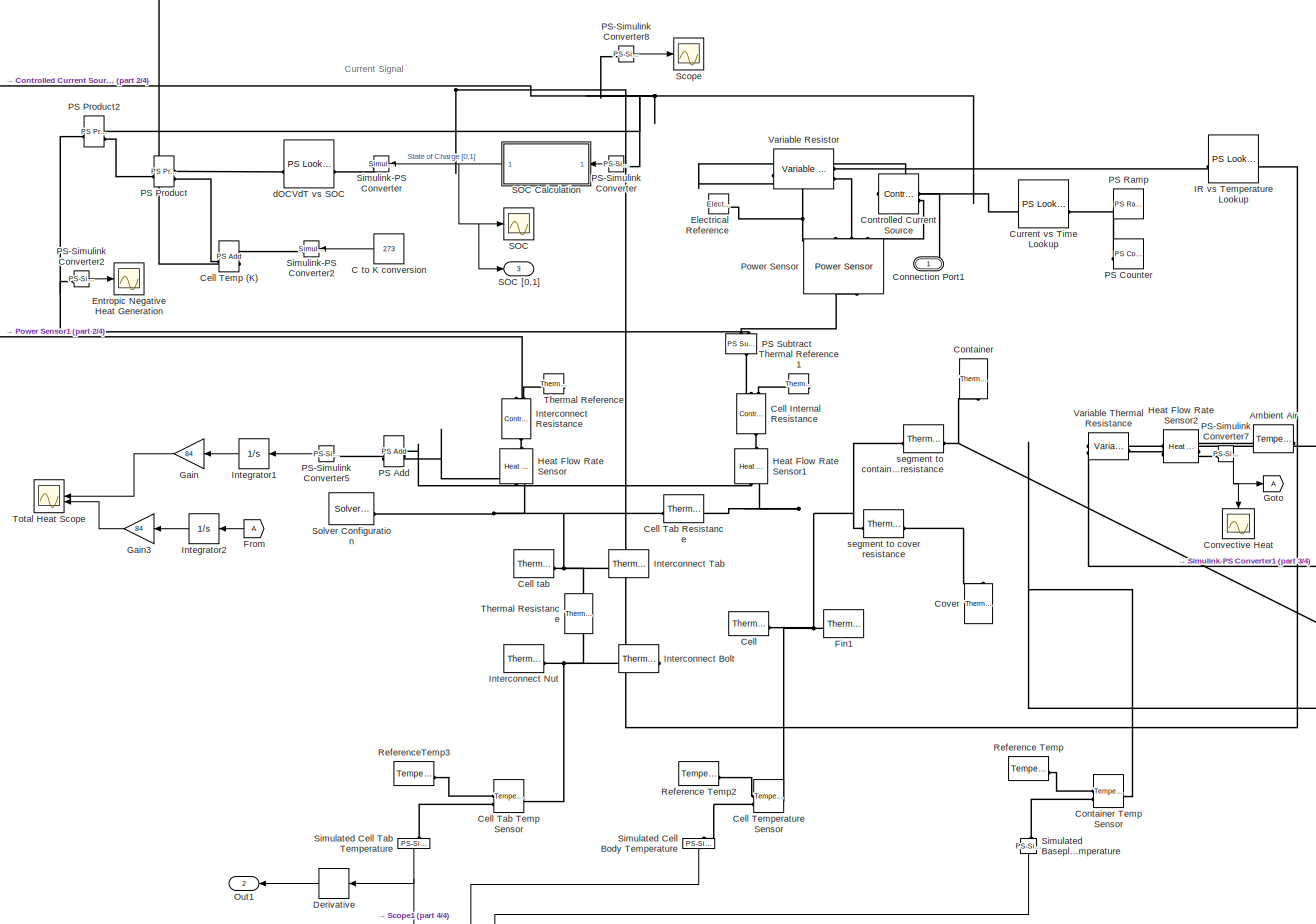
[diagram: root canvas - part 1/4, central region]
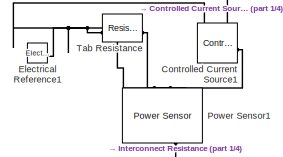
[diagram: root canvas - part 2/4, middle left region]
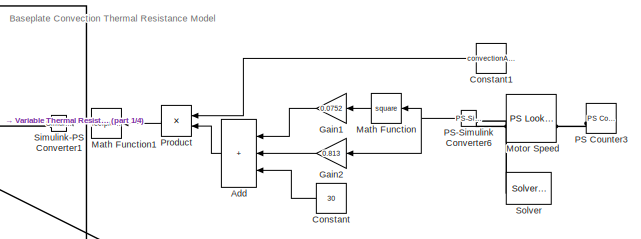
[diagram: root canvas - part 3/4, middle right region]
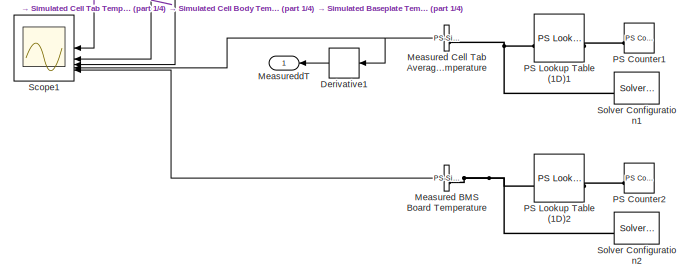
[diagram: root canvas - part 4/4, bottom center region]
MODEL slx_91faae69ffff
KIND model
CONFIG AbsTol = 1e-7
CONFIG EnableMultiTasking = off
CONFIG FixedStep = auto
CONFIG InitFcn = HT06_Simulink_Setup
CONFIG MaxStep = auto
CONFIG MinStep = auto
CONFIG RelTol = 1e-7
CONFIG SampleTimeConstraint = Unconstrained
CONFIG SolverName = VariableStepAuto
CONFIG StartTime = 0.0
CONFIG StopTime = 2500
BLOCK [Reference]  Fin1  REF=fl_lib/Thermal/Thermal Elements/Thermal Mass
  NameLocation = top
  SourceBlock = fl_lib/Thermal/Thermal Elements/Thermal Mass
  SourceType = Thermal Mass
BLOCK [Sum] Add
  IconShape = rectangular
  Inputs = +++
BLOCK [Reference] Ambient Air  REF=fl_lib/Thermal/Thermal Sources/Temperature Source
  NameLocation = top
  SourceBlock = fl_lib/Thermal/Thermal Sources/Temperature Source
  SourceType = Temperature Source
BLOCK [Constant] C to K conversion
  Value = 273
BLOCK [Reference] Cell   REF=fl_lib/Thermal/Thermal Elements/Thermal Mass
  SourceBlock = fl_lib/Thermal/Thermal Elements/Thermal Mass
  SourceType = Thermal Mass
BLOCK [Reference] Cell Internal Resistance  REF=fl_lib/Thermal/Thermal Sources/Controlled Heat Flow
Rate Source
  NameLocation = right
  SourceBlock = fl_lib/Thermal/Thermal Sources/Controlled Heat Flow\nRate Source
  SourceType = Controlled Heat Flow\nRate Source
BLOCK [Reference] Cell Tab Resistance  REF=fl_lib/Thermal/Thermal Elements/Thermal Resistance
  SourceBlock = fl_lib/Thermal/Thermal Elements/Thermal Resistance
  SourceType = Thermal Resistance
BLOCK [Reference] Cell Tab Temp Sensor  REF=fl_lib/Thermal/Thermal Sensors/Temperature Sensor
  SourceBlock = fl_lib/Thermal/Thermal Sensors/Temperature Sensor
  SourceType = Temperature Sensor
BLOCK [Reference] Cell Temp (K)  REF=fl_lib/Physical Signals/Functions/PS Add
  SourceBlock = fl_lib/Physical Signals/Functions/PS Add
  SourceType = PS Add
BLOCK [Reference] Cell Temperature Sensor  REF=fl_lib/Thermal/Thermal Sensors/Temperature Sensor
  SourceBlock = fl_lib/Thermal/Thermal Sensors/Temperature Sensor
  SourceType = Temperature Sensor
BLOCK [Reference] Cell tab  REF=fl_lib/Thermal/Thermal Elements/Thermal Mass
  Commented = on
  SourceBlock = fl_lib/Thermal/Thermal Elements/Thermal Mass
  SourceType = Thermal Mass
BLOCK [PMIOPort] Connection Port1
  Side = Left
BLOCK [Constant] Constant
  Value = 30
BLOCK [Constant] Constant1
  Value = convectionArea
BLOCK [Reference] Container  REF=fl_lib/Thermal/Thermal Elements/Thermal Mass
  NameLocation = left
  SourceBlock = fl_lib/Thermal/Thermal Elements/Thermal Mass
  SourceType = Thermal Mass
BLOCK [Reference] Container Temp Sensor  REF=fl_lib/Thermal/Thermal Sensors/Temperature Sensor
  SourceBlock = fl_lib/Thermal/Thermal Sensors/Temperature Sensor
  SourceType = Temperature Sensor
BLOCK [Reference] Controlled Current Source  REF=fl_lib/Electrical/Electrical Sources/Controlled Current
Source
  NameLocation = top
  SourceBlock = fl_lib/Electrical/Electrical Sources/Controlled Current\nSource
  SourceType = Controlled Current\nSource
BLOCK [Reference] Controlled Current Source1  REF=fl_lib/Electrical/Electrical Sources/Controlled Current
Source
  NameLocation = top
  SourceBlock = fl_lib/Electrical/Electrical Sources/Controlled Current\nSource
  SourceType = Controlled Current\nSource
BLOCK [Scope] Convective Heat
  Floating = off
  NameLocation = left
  NumInputPorts = 1
  ScopeSpecificationString = Simulink.scopes.TimeScopeBlockCfg('CurrentConfiguration', extmgr.ConfigurationSet(extmgr.Configuration('Core','General UI',true),extmgr.Configuration('Core','Source UI',true),extmgr.Configuration('Sources','WiredSimulink',true,'DataLoggingVariableName','ScopeData1'),extmgr.Configuration('Visuals','Time Domain',true,'SerializedDisplays',{struct('MinYLimReal','-0.42395','MaxYLimReal','3.81556','YLab...<+1436ch>
BLOCK [Reference] Cover  REF=fl_lib/Thermal/Thermal Elements/Thermal Mass
  NameLocation = right
  SourceBlock = fl_lib/Thermal/Thermal Elements/Thermal Mass
  SourceType = Thermal Mass
BLOCK [Reference] Current vs Time Lookup  REF=fl_lib/Physical Signals/Lookup Tables/PS Lookup Table (1D)
  SourceBlock = fl_lib/Physical Signals/Lookup Tables/PS Lookup Table (1D)
  SourceType = PS Lookup Table (1D)
BLOCK [Derivative] Derivative
BLOCK [Derivative] Derivative1
BLOCK [Reference] Electrical Reference  REF=fl_lib/Electrical/Electrical Elements/Electrical Reference
  SourceBlock = fl_lib/Electrical/Electrical Elements/Electrical Reference
  SourceType = Electrical Reference
BLOCK [Reference] Electrical Reference1  REF=fl_lib/Electrical/Electrical Elements/Electrical Reference
  SourceBlock = fl_lib/Electrical/Electrical Elements/Electrical Reference
  SourceType = Electrical Reference
BLOCK [Scope] Entropic Negative Heat Generation
  Floating = off
  NumInputPorts = 1
  ScopeSpecificationString = Simulink.scopes.TimeScopeBlockCfg('CurrentConfiguration', extmgr.ConfigurationSet(extmgr.Configuration('Core','General UI',true),extmgr.Configuration('Core','Source UI',true),extmgr.Configuration('Sources','WiredSimulink',true,'DataLoggingVariableName','ScopeData1'),extmgr.Configuration('Visuals','Time Domain',true,'SerializedDisplays',{struct('MinYLimReal','-75.9729','MaxYLimReal','12.86048','YLa...<+1425ch>
BLOCK [From] From
BLOCK [Gain] Gain
  Gain = 84
  NameLocation = top
BLOCK [Gain] Gain1
  Gain = 0.0752
BLOCK [Gain] Gain2
  Gain = 0.813
BLOCK [Gain] Gain3
  Gain = 84
  NameLocation = top
BLOCK [Goto] Goto
BLOCK [Reference] Heat Flow Rate Sensor  REF=fl_lib/Thermal/Thermal Sensors/Heat Flow Rate
Sensor
  NameLocation = left
  SourceBlock = fl_lib/Thermal/Thermal Sensors/Heat Flow Rate\nSensor
  SourceType = Heat Flow Rate\nSensor
BLOCK [Reference] Heat Flow Rate Sensor1  REF=fl_lib/Thermal/Thermal Sensors/Heat Flow Rate
Sensor
  NameLocation = left
  SourceBlock = fl_lib/Thermal/Thermal Sensors/Heat Flow Rate\nSensor
  SourceType = Heat Flow Rate\nSensor
BLOCK [Reference] Heat Flow Rate Sensor2  REF=fl_lib/Thermal/Thermal Sensors/Heat Flow Rate
Sensor
  NameLocation = top
  SourceBlock = fl_lib/Thermal/Thermal Sensors/Heat Flow Rate\nSensor
  SourceType = Heat Flow Rate\nSensor
BLOCK [Reference] IR vs Temperature Lookup  REF=fl_lib/Physical Signals/Lookup Tables/PS Lookup Table (1D)
  SourceBlock = fl_lib/Physical Signals/Lookup Tables/PS Lookup Table (1D)
  SourceType = PS Lookup Table (1D)
BLOCK [Integrator] Integrator1
  NameLocation = top
BLOCK [Integrator] Integrator2
  NameLocation = top
BLOCK [Reference] Interconnect Bolt  REF=fl_lib/Thermal/Thermal Elements/Thermal Mass
  NameLocation = top
  SourceBlock = fl_lib/Thermal/Thermal Elements/Thermal Mass
  SourceType = Thermal Mass
BLOCK [Reference] Interconnect Nut  REF=fl_lib/Thermal/Thermal Elements/Thermal Mass
  SourceBlock = fl_lib/Thermal/Thermal Elements/Thermal Mass
  SourceType = Thermal Mass
BLOCK [Reference] Interconnect Resistance  REF=fl_lib/Thermal/Thermal Sources/Controlled Heat Flow
Rate Source
  NameLocation = right
  SourceBlock = fl_lib/Thermal/Thermal Sources/Controlled Heat Flow\nRate Source
  SourceType = Controlled Heat Flow\nRate Source
BLOCK [Reference] Interconnect Tab  REF=fl_lib/Thermal/Thermal Elements/Thermal Mass
  NameLocation = top
  SourceBlock = fl_lib/Thermal/Thermal Elements/Thermal Mass
  SourceType = Thermal Mass
BLOCK [Math] Math Function
  Operator = square
BLOCK [Math] Math Function1
  Operator = reciprocal
BLOCK [Reference] Measured BMS Board Temperature  REF=nesl_utility/PS-Simulink
Converter
  SourceBlock = nesl_utility/PS-Simulink\nConverter
  SourceType = PS-Simulink\nConverter
BLOCK [Reference] Measured Cell Tab Average Temperature  REF=nesl_utility/PS-Simulink
Converter
  SourceBlock = nesl_utility/PS-Simulink\nConverter
  SourceType = PS-Simulink\nConverter
BLOCK [Outport] MeasureddT
BLOCK [Reference] Motor Speed  REF=fl_lib/Physical Signals/Lookup Tables/PS Lookup Table (1D)
  SourceBlock = fl_lib/Physical Signals/Lookup Tables/PS Lookup Table (1D)
  SourceType = PS Lookup Table (1D)
BLOCK [Outport] Out1
  Port = 2
  SignalName = SimdT
BLOCK [Reference] PS Add  REF=fl_lib/Physical Signals/Functions/PS Add
  NameLocation = top
  SourceBlock = fl_lib/Physical Signals/Functions/PS Add
  SourceType = PS Add
BLOCK [Reference] PS Counter  REF=fl_lib/Physical Signals/Sources/PS Counter
  SourceBlock = fl_lib/Physical Signals/Sources/PS Counter
  SourceType = PS Counter
BLOCK [Reference] PS Counter1  REF=fl_lib/Physical Signals/Sources/PS Counter
  SourceBlock = fl_lib/Physical Signals/Sources/PS Counter
  SourceType = PS Counter
BLOCK [Reference] PS Counter2  REF=fl_lib/Physical Signals/Sources/PS Counter
  SourceBlock = fl_lib/Physical Signals/Sources/PS Counter
  SourceType = PS Counter
BLOCK [Reference] PS Counter3  REF=fl_lib/Physical Signals/Sources/PS Counter
  SourceBlock = fl_lib/Physical Signals/Sources/PS Counter
  SourceType = PS Counter
BLOCK [Reference] PS Lookup Table (1D)1  REF=fl_lib/Physical Signals/Lookup Tables/PS Lookup Table (1D)
  SourceBlock = fl_lib/Physical Signals/Lookup Tables/PS Lookup Table (1D)
  SourceType = PS Lookup Table (1D)
BLOCK [Reference] PS Lookup Table (1D)2  REF=fl_lib/Physical Signals/Lookup Tables/PS Lookup Table (1D)
  SourceBlock = fl_lib/Physical Signals/Lookup Tables/PS Lookup Table (1D)
  SourceType = PS Lookup Table (1D)
BLOCK [Reference] PS Product  REF=fl_lib/Physical Signals/Functions/PS Product
  SourceBlock = fl_lib/Physical Signals/Functions/PS Product
  SourceType = PS Product
BLOCK [Reference] PS Product2  REF=fl_lib/Physical Signals/Functions/PS Product
  SourceBlock = fl_lib/Physical Signals/Functions/PS Product
  SourceType = PS Product
BLOCK [Reference] PS Ramp  REF=fl_lib/Physical Signals/Sources/PS Ramp
  Commented = on
  SourceBlock = fl_lib/Physical Signals/Sources/PS Ramp
  SourceType = PS Ramp
BLOCK [Reference] PS Subtract  REF=fl_lib/Physical Signals/Functions/PS Subtract
  NameLocation = left
  SourceBlock = fl_lib/Physical Signals/Functions/PS Subtract
  SourceType = PS Subtract
BLOCK [Reference] PS-Simulink Converter  REF=nesl_utility/PS-Simulink
Converter
  SourceBlock = nesl_utility/PS-Simulink\nConverter
  SourceType = PS-Simulink\nConverter
BLOCK [Reference] PS-Simulink Converter2  REF=nesl_utility/PS-Simulink
Converter
  SourceBlock = nesl_utility/PS-Simulink\nConverter
  SourceType = PS-Simulink\nConverter
BLOCK [Reference] PS-Simulink Converter5  REF=nesl_utility/PS-Simulink
Converter
  NameLocation = top
  SourceBlock = nesl_utility/PS-Simulink\nConverter
  SourceType = PS-Simulink\nConverter
BLOCK [Reference] PS-Simulink Converter6  REF=nesl_utility/PS-Simulink
Converter
  SourceBlock = nesl_utility/PS-Simulink\nConverter
  SourceType = PS-Simulink\nConverter
BLOCK [Reference] PS-Simulink Converter7  REF=nesl_utility/PS-Simulink
Converter
  SourceBlock = nesl_utility/PS-Simulink\nConverter
  SourceType = PS-Simulink\nConverter
BLOCK [Reference] PS-Simulink Converter8  REF=nesl_utility/PS-Simulink
Converter
  SourceBlock = nesl_utility/PS-Simulink\nConverter
  SourceType = PS-Simulink\nConverter
BLOCK [Reference] Power Sensor  REF=ee_lib/Sensors &
Transducers/Power Sensor
  NameLocation = left
  SourceBlock = ee_lib/Sensors &\nTransducers/Power Sensor
  SourceType = Power Sensor
BLOCK [Reference] Power Sensor1  REF=ee_lib/Sensors &
Transducers/Power Sensor
  NameLocation = left
  SourceBlock = ee_lib/Sensors &\nTransducers/Power Sensor
  SourceType = Power Sensor
BLOCK [Product] Product
BLOCK [Reference] Reference Temp  REF=fl_lib/Thermal/Thermal Sources/Temperature Source
  SourceBlock = fl_lib/Thermal/Thermal Sources/Temperature Source
  SourceType = Temperature Source
BLOCK [Reference] Reference Temp2  REF=fl_lib/Thermal/Thermal Sources/Temperature Source
  SourceBlock = fl_lib/Thermal/Thermal Sources/Temperature Source
  SourceType = Temperature Source
BLOCK [Reference] ReferenceTemp3  REF=fl_lib/Thermal/Thermal Sources/Temperature Source
  SourceBlock = fl_lib/Thermal/Thermal Sources/Temperature Source
  SourceType = Temperature Source
BLOCK [Scope] SOC
  Floating = off
  NumInputPorts = 1
  ScopeSpecificationString = Simulink.scopes.TimeScopeBlockCfg('CurrentConfiguration', extmgr.ConfigurationSet(extmgr.Configuration('Core','General UI',true),extmgr.Configuration('Core','Source UI',true),extmgr.Configuration('Sources','WiredSimulink',true,'DataLoggingVariableName','ScopeData1'),extmgr.Configuration('Visuals','Time Domain',true,'SerializedDisplays',{struct('MinYLimReal','-0.01995','MaxYLimReal','1.11333','YLab...<+1490ch>
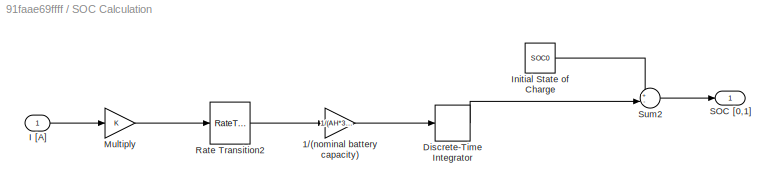
BLOCK [SubSystem] SOC Calculation
BLOCK [Gain] SOC Calculation/1//(nominal battery capacity)
  Gain = 1/(AH*3600)
BLOCK [DiscreteIntegrator] SOC Calculation/Discrete-Time Integrator
  ICPrevOutput = DiscIntNeverNeededParam
  ICPrevScaledInput = DiscIntNeverNeededParam
  InitialConditionSetting = Auto
  SampleTime = -1
BLOCK [Inport] SOC Calculation/I [A]
BLOCK [Constant] SOC Calculation/Initial State of Charge
  Value = SOC0
BLOCK [Gain] SOC Calculation/Multiply
BLOCK [RateTransition] SOC Calculation/Rate Transition2
BLOCK [Outport] SOC Calculation/SOC [0,1]
  VectorParamsAs1DForOutWhenUnconnected = off
BLOCK [Sum] SOC Calculation/Sum2
  Inputs = +-
BLOCK [Outport] SOC [0,1]
  Port = 3
  SignalName = SOC
BLOCK [Scope] Scope
  Floating = off
  NumInputPorts = 1
  ScopeSpecificationString = Simulink.scopes.TimeScopeBlockCfg('CurrentConfiguration', extmgr.ConfigurationSet(extmgr.Configuration('Core','General UI',true),extmgr.Configuration('Core','Source UI',true),extmgr.Configuration('Sources','WiredSimulink',true,'DataLoggingVariableName','ScopeData2'),extmgr.Configuration('Visuals','Time Domain',true,'SerializedDisplays',{struct('MinYLimReal','-42.86589','MaxYLimReal','241.94709','Y...<+1440ch>
BLOCK [Scope] Scope1
  Floating = off
  NumInputPorts = 5
  ScopeSpecificationString = Simulink.scopes.TimeScopeBlockCfg('CurrentConfiguration', extmgr.ConfigurationSet(extmgr.Configuration('Core','General UI',true),extmgr.Configuration('Core','Source UI',true),extmgr.Configuration('Sources','WiredSimulink',true,'DataLoggingVariableName','ScopeData1'),extmgr.Configuration('Visuals','Time Domain',true,'SerializedDisplays',{struct('MinYLimReal','18.97886','MaxYLimReal','61.26197','YLa...<+1587ch>
BLOCK [Reference] Simulated Baseplate Temperature  REF=nesl_utility/PS-Simulink
Converter
  NameLocation = left
  SourceBlock = nesl_utility/PS-Simulink\nConverter
  SourceType = PS-Simulink\nConverter
BLOCK [Reference] Simulated Cell Body Temperature  REF=nesl_utility/PS-Simulink
Converter
  NameLocation = left
  SourceBlock = nesl_utility/PS-Simulink\nConverter
  SourceType = PS-Simulink\nConverter
BLOCK [Reference] Simulated Cell Tab Temperature  REF=nesl_utility/PS-Simulink
Converter
  NameLocation = left
  SourceBlock = nesl_utility/PS-Simulink\nConverter
  SourceType = PS-Simulink\nConverter
BLOCK [Reference] Simulink-PS Converter  REF=nesl_utility/Simulink-PS
Converter
  SourceBlock = nesl_utility/Simulink-PS\nConverter
  SourceType = Simulink-PS\nConverter
BLOCK [Reference] Simulink-PS Converter1  REF=nesl_utility/Simulink-PS
Converter
  SourceBlock = nesl_utility/Simulink-PS\nConverter
  SourceType = Simulink-PS\nConverter
BLOCK [Reference] Simulink-PS Converter2  REF=nesl_utility/Simulink-PS
Converter
  SourceBlock = nesl_utility/Simulink-PS\nConverter
  SourceType = Simulink-PS\nConverter
BLOCK [Reference] Solver  REF=nesl_utility/Solver
Configuration
  SourceBlock = nesl_utility/Solver\nConfiguration
  SourceType = Solver\nConfiguration
BLOCK [Reference] Solver Configuration  REF=nesl_utility/Solver
Configuration
  SourceBlock = nesl_utility/Solver\nConfiguration
  SourceType = Solver\nConfiguration
BLOCK [Reference] Solver Configuration1  REF=nesl_utility/Solver
Configuration
  SourceBlock = nesl_utility/Solver\nConfiguration
  SourceType = Solver\nConfiguration
BLOCK [Reference] Solver Configuration2  REF=nesl_utility/Solver
Configuration
  SourceBlock = nesl_utility/Solver\nConfiguration
  SourceType = Solver\nConfiguration
BLOCK [Reference] Tab Resistance  REF=fl_lib/Electrical/Electrical Elements/Resistor
  SourceBlock = fl_lib/Electrical/Electrical Elements/Resistor
  SourceType = Resistor
BLOCK [Reference] Thermal Reference  REF=fl_lib/Thermal/Thermal Elements/Thermal Reference
  NameLocation = top
  SourceBlock = fl_lib/Thermal/Thermal Elements/Thermal Reference
  SourceType = Thermal Reference
BLOCK [Reference] Thermal Reference1  REF=fl_lib/Thermal/Thermal Elements/Thermal Reference
  NameLocation = top
  SourceBlock = fl_lib/Thermal/Thermal Elements/Thermal Reference
  SourceType = Thermal Reference
BLOCK [Reference] Thermal Resistance  REF=fl_lib/Thermal/Thermal Elements/Thermal Resistance
  NameLocation = left
  SourceBlock = fl_lib/Thermal/Thermal Elements/Thermal Resistance
  SourceType = Thermal Resistance
BLOCK [Scope] Total Heat Scope
  Floating = off
  NameLocation = top
  NumInputPorts = 2
  ScopeSpecificationString = Simulink.scopes.TimeScopeBlockCfg('CurrentConfiguration', extmgr.ConfigurationSet(extmgr.Configuration('Core','General UI',true),extmgr.Configuration('Core','Source UI',true),extmgr.Configuration('Sources','WiredSimulink',true,'DataLoggingVariableName','ScopeData2'),extmgr.Configuration('Visuals','Time Domain',true,'SerializedDisplays',{struct('MinYLimReal','-155077.45994','MaxYLimReal','1394691.0...<+1487ch>
BLOCK [Reference] Variable Resistor  REF=fl_lib/Electrical/Electrical Elements/Variable Resistor
  SourceBlock = fl_lib/Electrical/Electrical Elements/Variable Resistor
  SourceType = Variable Resistor
BLOCK [Reference] Variable Thermal Resistance  REF=fl_lib/Thermal/Thermal Elements/Variable Thermal
Resistance
  SourceBlock = fl_lib/Thermal/Thermal Elements/Variable Thermal\nResistance
  SourceType = Variable Thermal\nResistance
BLOCK [Reference] dOCVdT vs SOC  REF=fl_lib/Physical Signals/Lookup Tables/PS Lookup Table (1D)
  NameLocation = left
  SourceBlock = fl_lib/Physical Signals/Lookup Tables/PS Lookup Table (1D)
  SourceType = PS Lookup Table (1D)
BLOCK [Reference] segment to container resistance  REF=fl_lib/Thermal/Thermal Elements/Thermal Resistance
  SourceBlock = fl_lib/Thermal/Thermal Elements/Thermal Resistance
  SourceType = Thermal Resistance
BLOCK [Reference] segment to cover resistance  REF=fl_lib/Thermal/Thermal Elements/Thermal Resistance
  SourceBlock = fl_lib/Thermal/Thermal Elements/Thermal Resistance
  SourceType = Thermal Resistance
ANNOTATION (root): Baseplate Convection Thermal Resistance Model
ANNOTATION (root): Current Signal
LINE Add:1 -> Product:2
LINE C to K conversion:1 -> Simulink-PS Converter2:1
LINE Constant1:1 -> Product:1
LINE Constant:1 -> Add:3
LINE Derivative1:1 -> MeasureddT:1
LINE Derivative:1 -> Out1:1
LINE From:1 -> Integrator2:1
LINE Gain1:1 -> Add:1
LINE Gain2:1 -> Add:2
LINE Gain3:1 -> Total Heat Scope:2
LINE Gain:1 -> Total Heat Scope:1
LINE Integrator1:1 -> Gain:1
LINE Integrator2:1 -> Gain3:1
LINE Math Function1:1 -> Simulink-PS Converter1:1
LINE Math Function:1 -> Gain1:1
LINE Measured BMS Board Temperature:1 -> Scope1:5
NET Measured Cell Tab Average Temperature:1 -> Derivative1:1, Scope1:4
LINE PS-Simulink Converter2:1 -> Entropic Negative Heat Generation:1
LINE PS-Simulink Converter5:1 -> Integrator1:1
NET PS-Simulink Converter6:1 -> Gain2:1, Math Function:1
NET PS-Simulink Converter7:1 -> Convective Heat:1, Goto:1
LINE PS-Simulink Converter8:1 -> Scope:1
LINE PS-Simulink Converter:1 -> SOC Calculation:1
LINE Product:1 -> Math Function1:1
LINE SOC Calculation/1//(nominal battery capacity):1 -> SOC Calculation/Discrete-Time Integrator:1
LINE SOC Calculation/Discrete-Time Integrator:1 -> SOC Calculation/Sum2:2
LINE SOC Calculation/I [A]:1 -> SOC Calculation/Multiply:1
LINE SOC Calculation/Initial State of Charge:1 -> SOC Calculation/Sum2:1
LINE SOC Calculation/Multiply:1 -> SOC Calculation/Rate Transition2:1
LINE SOC Calculation/Rate Transition2:1 -> SOC Calculation/1//(nominal battery capacity):1
LINE SOC Calculation/Sum2:1 -> SOC Calculation/SOC [0,1]:1
NET SOC Calculation:1 -> SOC [0,1]:1, SOC:1, Simulink-PS Converter:1
LINE Simulated Baseplate Temperature:1 -> Scope1:3
LINE Simulated Cell Body Temperature:1 -> Scope1:2
NET Simulated Cell Tab Temperature:1 -> Derivative:1, Scope1:1
PNET net1:  Fin1:LConn1 -- Cell :LConn1 -- Cell Tab Resistance:RConn1 -- Cell Temperature Sensor:LConn1 -- Heat Flow Rate Sensor1:RConn2 -- segment to container resistance:LConn1 -- segment to cover resistance:LConn1
PLINE Ambient Air:LConn1 -- Heat Flow Rate Sensor2:RConn2
PLINE Cell Internal Resistance:LConn1 -- Heat Flow Rate Sensor1:LConn1
PLINE Cell Internal Resistance:RConn1 -- PS Subtract:RConn1
PLINE Cell Internal Resistance:RConn2 -- Thermal Reference1:LConn1
PNET net2: Cell Tab Resistance:LConn1 -- Cell tab:LConn1 -- Heat Flow Rate Sensor:RConn2 -- Interconnect Tab:LConn1 -- Solver Configuration:RConn1 -- Thermal Resistance:LConn1
PNET net3: Cell Tab Temp Sensor:LConn1 -- Interconnect Bolt:LConn1 -- Interconnect Nut:LConn1 -- Thermal Resistance:RConn1
PLINE Cell Tab Temp Sensor:RConn1 -- ReferenceTemp3:LConn1
PLINE Cell Tab Temp Sensor:RConn2 -- Simulated Cell Tab Temperature:LConn1
PLINE Cell Temp (K):LConn1 -- Simulink-PS Converter2:RConn1
PNET net4: Cell Temp (K):LConn2 -- Cell Temperature Sensor:RConn2 -- IR vs Temperature Lookup:LConn1 -- Simulated Cell Body Temperature:LConn1
PLINE Cell Temp (K):RConn1 -- PS Product:LConn2
PLINE Cell Temperature Sensor:RConn1 -- Reference Temp2:LConn1
PNET net5: Connection Port1:RConn1 -- Controlled Current Source1:RConn1 -- Controlled Current Source:RConn1 -- Current vs Time Lookup:RConn1 -- PS Product2:LConn1 -- PS-Simulink Converter8:LConn1 -- PS-Simulink Converter:LConn1
PNET net6: Container Temp Sensor:LConn1 -- Container:LConn1 -- Variable Thermal Resistance:LConn1 -- segment to container resistance:RConn1
PLINE Container Temp Sensor:RConn1 -- Reference Temp:LConn1
PLINE Container Temp Sensor:RConn2 -- Simulated Baseplate Temperature:LConn1
PLINE Controlled Current Source1:LConn1 -- Power Sensor1:LConn1
PNET net7: Controlled Current Source1:RConn2 -- Electrical Reference1:LConn1 -- Power Sensor1:LConn3 -- Tab Resistance:RConn1
PLINE Controlled Current Source:LConn1 -- Power Sensor:LConn1
PNET net8: Controlled Current Source:RConn2 -- Electrical Reference:LConn1 -- Power Sensor:LConn3 -- Variable Resistor:RConn1
PLINE Cover:LConn1 -- segment to cover resistance:RConn1
PLINE Current vs Time Lookup:LConn1 -- PS Counter:RConn1
PLINE Heat Flow Rate Sensor1:RConn1 -- PS Add:LConn1
PLINE Heat Flow Rate Sensor2:LConn1 -- Variable Thermal Resistance:RConn1
PLINE Heat Flow Rate Sensor2:RConn1 -- PS-Simulink Converter7:LConn1
PLINE Heat Flow Rate Sensor:LConn1 -- Interconnect Resistance:LConn1
PLINE Heat Flow Rate Sensor:RConn1 -- PS Add:LConn2
PLINE IR vs Temperature Lookup:RConn1 -- Variable Resistor:LConn1
PLINE Interconnect Resistance:RConn1 -- Power Sensor1:RConn1
PLINE Interconnect Resistance:RConn2 -- Thermal Reference:LConn1
PNET net9: Measured BMS Board Temperature:LConn1 -- PS Lookup Table (1D)2:RConn1 -- Solver Configuration2:RConn1
PNET net10: Measured Cell Tab Average Temperature:LConn1 -- PS Lookup Table (1D)1:RConn1 -- Solver Configuration1:RConn1
PLINE Motor Speed:LConn1 -- PS Counter3:RConn1
PNET net11: Motor Speed:RConn1 -- PS-Simulink Converter6:LConn1 -- Solver:RConn1
PLINE PS Add:RConn1 -- PS-Simulink Converter5:LConn1
PLINE PS Counter1:RConn1 -- PS Lookup Table (1D)1:LConn1
PLINE PS Counter2:RConn1 -- PS Lookup Table (1D)2:LConn1
PLINE PS Product2:LConn2 -- PS Product:RConn1
PNET net12: PS Product2:RConn1 -- PS Subtract:LConn2 -- PS-Simulink Converter2:LConn1
PLINE PS Product:LConn1 -- dOCVdT vs SOC:RConn1
PLINE PS Subtract:LConn1 -- Power Sensor:RConn1
PLINE Power Sensor1:LConn2 -- Tab Resistance:LConn1
PLINE Power Sensor:LConn2 -- Variable Resistor:LConn2
PLINE Simulink-PS Converter1:RConn1 -- Variable Thermal Resistance:LConn2
PLINE Simulink-PS Converter:RConn1 -- dOCVdT vs SOC:LConn1
note: NET lines group one-source signal fan-out (src -> all destinations, sorted); 1:1 wires keep LINE; PNET lines group multi-terminal physical nets as a canonical sorted terminal list (undirected conserving connections); 2-terminal nets keep the pairwise PLINE form
